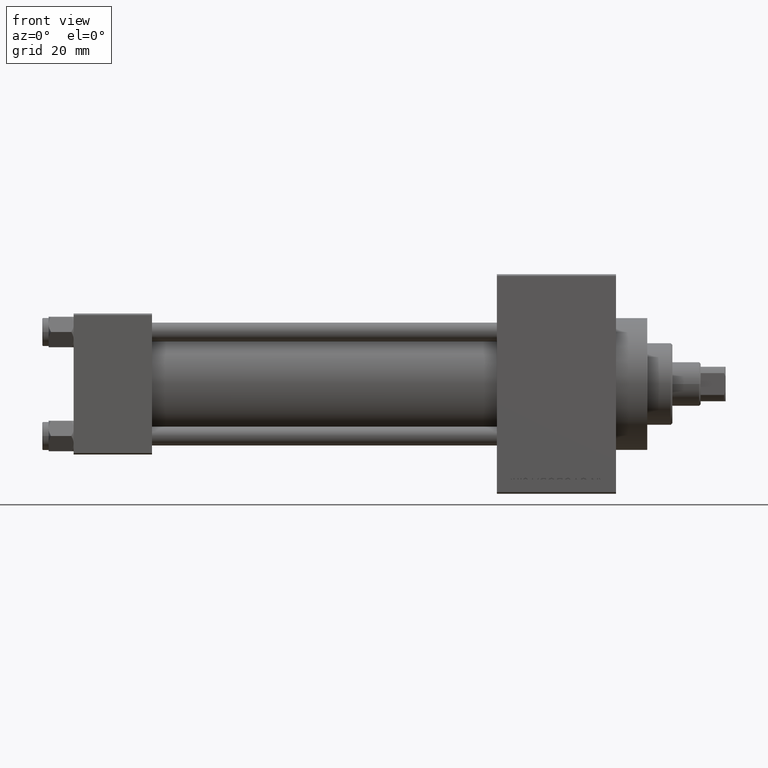
[diagram: clean part render]
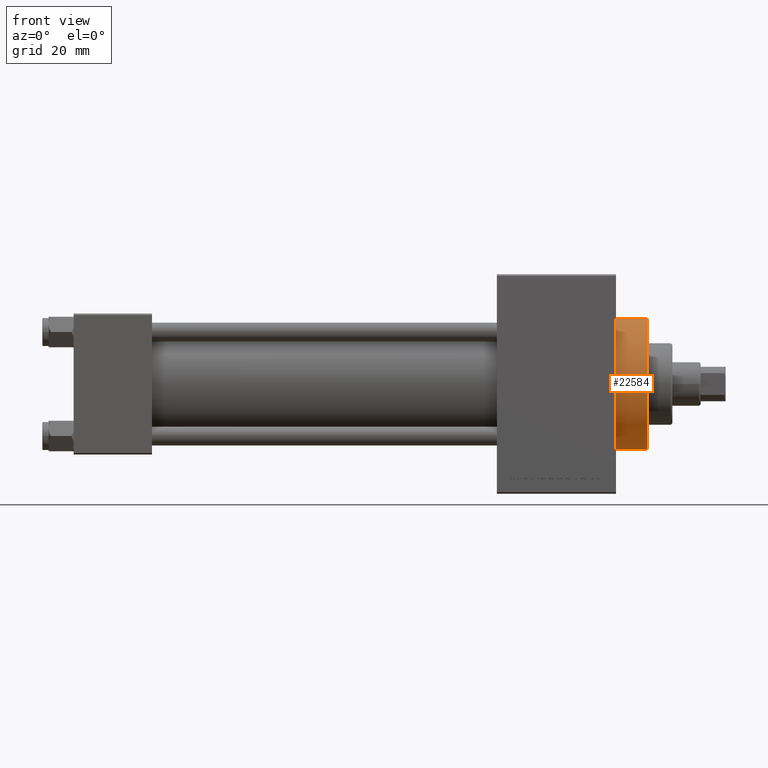
[diagram: same view with one face highlighted and labeled with its STEP entity id]
A machine part, front view. The second image highlights one B-rep face of the part: STEP entity #22584.
In plain terms, the highlighted cylindrical surface (partial cylindrical patch) has radius 21 mm, axis along (-1, -0, -0).
Its self-contained STEP definition (entity closure, byte-faithful):
#70 = EDGE_CURVE ( 'NONE', #46877, #46456, #32652, .T. ) ;
#704 = CIRCLE ( 'NONE', #33595, 21.00000000000000000 ) ;
#925 = CARTESIAN_POINT ( 'NONE',  ( 183.0000000000000284, 2.571758278209441661E-15, -21.00000000000000000 ) ) ;
#2768 = CARTESIAN_POINT ( 'NONE',  ( 183.0000000000000284, 0.000000000000000000, 0.000000000000000000 ) ) ;
#4619 = DIRECTION ( 'NONE',  ( -1.000000000000000000, -0.000000000000000000, -0.000000000000000000 ) ) ;
#5096 = LINE ( 'NONE', #44597, #45821 ) ;
#7993 = ORIENTED_EDGE ( 'NONE', *, *, #70, .F. ) ;
#9496 = DIRECTION ( 'NONE',  ( 0.000000000000000000, 0.000000000000000000, 1.000000000000000000 ) ) ;
#9728 = EDGE_CURVE ( 'NONE', #27369, #28927, #704, .T. ) ;
#10615 = ORIENTED_EDGE ( 'NONE', *, *, #9728, .T. ) ;
#10952 = AXIS2_PLACEMENT_3D ( 'NONE', #2768, #34879, #9496 ) ;
#14615 = LINE ( 'NONE', #44513, #37248 ) ;
#17331 = CARTESIAN_POINT ( 'NONE',  ( 183.0000000000000284, 0.000000000000000000, 21.00000000000000000 ) ) ;
#20050 = FACE_OUTER_BOUND ( 'NONE', #21024, .T. ) ;
#21024 = EDGE_LOOP ( 'NONE', ( #22813, #7993, #39409, #10615 ) ) ;
#22104 = DIRECTION ( 'NONE',  ( 0.000000000000000000, 0.000000000000000000, -1.000000000000000000 ) ) ;
#22584 = ADVANCED_FACE ( 'NONE', ( #20050 ), #28156, .T. ) ;
#22813 = ORIENTED_EDGE ( 'NONE', *, *, #41053, .F. ) ;
#24584 = CARTESIAN_POINT ( 'NONE',  ( 183.0000000000000284, 0.000000000000000000, 0.000000000000000000 ) ) ;
#25683 = DIRECTION ( 'NONE',  ( 1.000000000000000000, 0.000000000000000000, 0.000000000000000000 ) ) ;
#27369 = VERTEX_POINT ( 'NONE', #46338 ) ;
#28156 = CYLINDRICAL_SURFACE ( 'NONE', #10952, 21.00000000000000000 ) ;
#28927 = VERTEX_POINT ( 'NONE', #37986 ) ;
#29214 = DIRECTION ( 'NONE',  ( -1.000000000000000000, -0.000000000000000000, -0.000000000000000000 ) ) ;
#32652 = CIRCLE ( 'NONE', #40245, 21.00000000000000000 ) ;
#33595 = AXIS2_PLACEMENT_3D ( 'NONE', #43869, #25683, #22104 ) ;
#34879 = DIRECTION ( 'NONE',  ( -1.000000000000000000, -0.000000000000000000, -0.000000000000000000 ) ) ;
#35600 = DIRECTION ( 'NONE',  ( 1.000000000000000000, 0.000000000000000000, 0.000000000000000000 ) ) ;
#36667 = EDGE_CURVE ( 'NONE', #46877, #27369, #14615, .T. ) ;
#37248 = VECTOR ( 'NONE', #29214, 1000.000000000000000 ) ;
#37986 = CARTESIAN_POINT ( 'NONE',  ( 173.0000000000000284, 2.571758278209441661E-15, -21.00000000000000000 ) ) ;
#39409 = ORIENTED_EDGE ( 'NONE', *, *, #36667, .T. ) ;
#40245 = AXIS2_PLACEMENT_3D ( 'NONE', #24584, #35600, #45891 ) ;
#41053 = EDGE_CURVE ( 'NONE', #46456, #28927, #5096, .T. ) ;
#43869 = CARTESIAN_POINT ( 'NONE',  ( 173.0000000000000284, 0.000000000000000000, 0.000000000000000000 ) ) ;
#44513 = CARTESIAN_POINT ( 'NONE',  ( 183.0000000000000284, 0.000000000000000000, 21.00000000000000000 ) ) ;
#44597 = CARTESIAN_POINT ( 'NONE',  ( 183.0000000000000284, 2.571758278209441661E-15, -21.00000000000000000 ) ) ;
#45821 = VECTOR ( 'NONE', #4619, 1000.000000000000000 ) ;
#45891 = DIRECTION ( 'NONE',  ( 0.000000000000000000, 0.000000000000000000, -1.000000000000000000 ) ) ;
#46338 = CARTESIAN_POINT ( 'NONE',  ( 173.0000000000000284, 0.000000000000000000, 21.00000000000000000 ) ) ;
#46456 = VERTEX_POINT ( 'NONE', #925 ) ;
#46877 = VERTEX_POINT ( 'NONE', #17331 ) ;